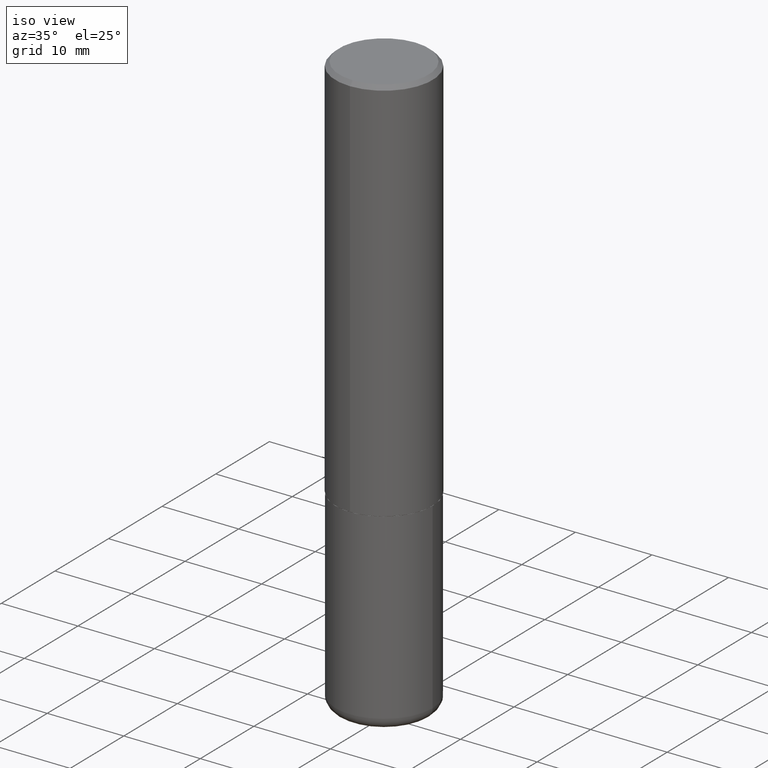
[diagram: clean part render]
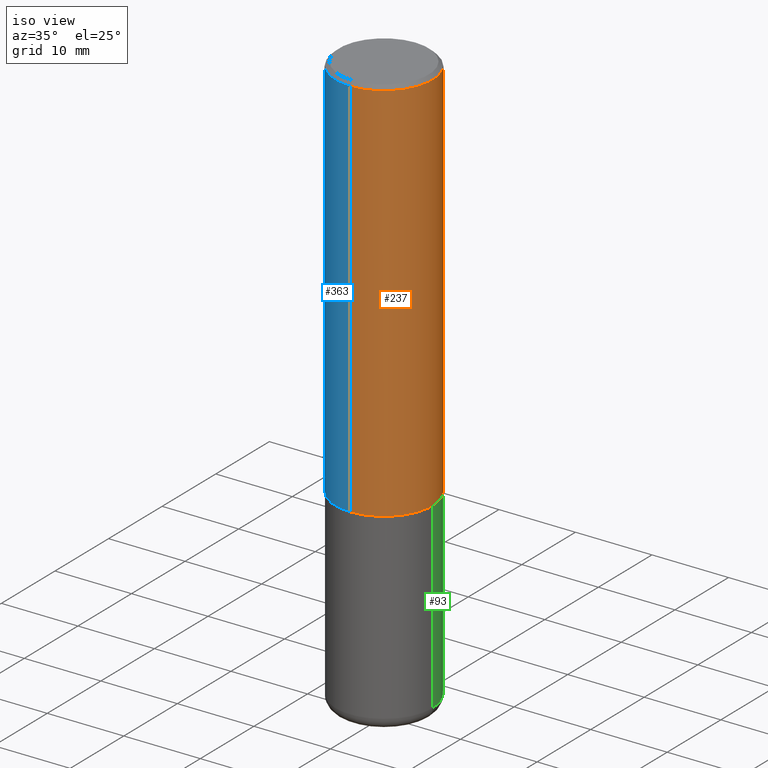
[diagram: same view with three faces highlighted in distinct colors, each labeled with its STEP entity id]
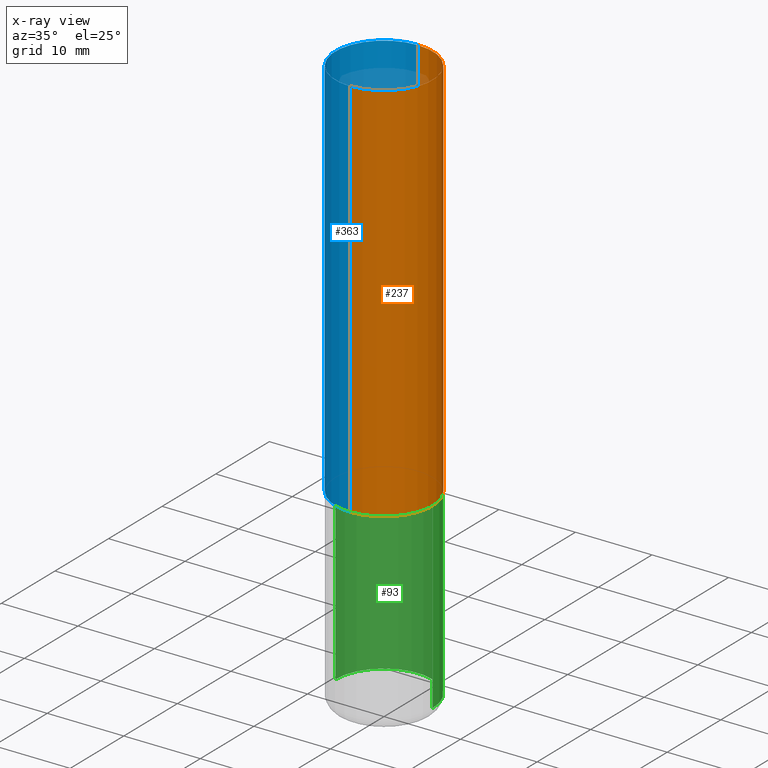
[diagram: x-ray of the same camera — body ghosted, the three highlighted faces saturated]
A machine part, iso view with three faces highlighted in distinct colors.
The next image is the same camera in x-ray (body ghosted, the three faces saturated) — at least one of them is partly hidden behind the body in this view.
Their STEP definitions:

[orange] entity #237 — the highlighted cylindrical surface (partial cylindrical patch) has radius 6.35 mm, axis along (-0, 0, 1).
#3 = CARTESIAN_POINT ( 'NONE',  ( -1.745740669421567467E-15, -0.2500000000000001110, 8.732840426224690034E-16 ) ) ;
#27 = ORIENTED_EDGE ( 'NONE', *, *, #418, .T. ) ;
#33 = DIRECTION ( 'NONE',  ( -6.982962677686266711E-15, -1.000000000000000000, 3.493136170489874436E-15 ) ) ;
#38 = CYLINDRICAL_SURFACE ( 'NONE', #206, 0.2500000000000001110 ) ;
#44 = DIRECTION ( 'NONE',  ( -2.444313243422440590E-29, 3.493136170489874041E-15, 1.000000000000000000 ) ) ;
#53 = VECTOR ( 'NONE', #279, 39.37007874015748143 ) ;
#67 = ORIENTED_EDGE ( 'NONE', *, *, #331, .F. ) ;
#74 = VECTOR ( 'NONE', #139, 39.37007874015748143 ) ;
#92 = CARTESIAN_POINT ( 'NONE',  ( -1.715124499442882299E-15, -0.2500000000000000555, -0.01999999999999918163 ) ) ;
#99 = EDGE_CURVE ( 'NONE', #169, #311, #348, .T. ) ;
#100 = AXIS2_PLACEMENT_3D ( 'NONE', #199, #138, #230 ) ;
#108 = DIRECTION ( 'NONE',  ( -6.982962677686265922E-15, -1.000000000000000000, 3.278217592397112312E-15 ) ) ;
#127 = ORIENTED_EDGE ( 'NONE', *, *, #163, .F. ) ;
#131 = LINE ( 'NONE', #3, #74 ) ;
#138 = DIRECTION ( 'NONE',  ( -2.444313243422440590E-29, 3.493136170489874041E-15, 1.000000000000000000 ) ) ;
#139 = DIRECTION ( 'NONE',  ( -2.444313243422440590E-29, 3.493136170489874041E-15, 1.000000000000000000 ) ) ;
#163 = EDGE_CURVE ( 'NONE', #417, #207, #391, .T. ) ;
#169 = VERTEX_POINT ( 'NONE', #297 ) ;
#188 = LINE ( 'NONE', #289, #53 ) ;
#196 = CARTESIAN_POINT ( 'NONE',  ( 1.776356839400276103E-15, 0.2499999999999933109, -1.999000000000000998 ) ) ;
#199 = CARTESIAN_POINT ( 'NONE',  ( 4.888626486844894878E-31, -6.986272340979767558E-17, -0.02000000000000005593 ) ) ;
#206 = AXIS2_PLACEMENT_3D ( 'NONE', #374, #276, #33 ) ;
#207 = VERTEX_POINT ( 'NONE', #249 ) ;
#230 = DIRECTION ( 'NONE',  ( -6.982962677686265922E-15, -1.000000000000000000, 3.500180241882337261E-15 ) ) ;
#237 = ADVANCED_FACE ( 'NONE', ( #352 ), #38, .T. ) ;
#249 = CARTESIAN_POINT ( 'NONE',  ( 1.745740669421566875E-15, 0.2499999999999999167, -0.02000000000000093023 ) ) ;
#276 = DIRECTION ( 'NONE',  ( -2.444313243422440590E-29, 3.493136170489874041E-15, 1.000000000000000000 ) ) ;
#279 = DIRECTION ( 'NONE',  ( -2.444313243422440590E-29, 3.493136170489874041E-15, 1.000000000000000000 ) ) ;
#289 = CARTESIAN_POINT ( 'NONE',  ( 1.776356839400251254E-15, 0.2500000000000001110, -8.732840426224690034E-16 ) ) ;
#297 = CARTESIAN_POINT ( 'NONE',  ( -1.745740669421519543E-15, -0.2500000000000072164, -1.998999999999999444 ) ) ;
#311 = VERTEX_POINT ( 'NONE', #196 ) ;
#323 = AXIS2_PLACEMENT_3D ( 'NONE', #341, #44, #108 ) ;
#331 = EDGE_CURVE ( 'NONE', #169, #417, #131, .T. ) ;
#341 = CARTESIAN_POINT ( 'NONE',  ( 4.886182173601459090E-29, -6.982779204809258546E-15, -1.999000000000000110 ) ) ;
#348 = CIRCLE ( 'NONE', #323, 0.2500000000000002776 ) ;
#352 = FACE_OUTER_BOUND ( 'NONE', #411, .T. ) ;
#368 = ORIENTED_EDGE ( 'NONE', *, *, #99, .T. ) ;
#374 = CARTESIAN_POINT ( 'NONE',  ( 0.000000000000000000, 0.000000000000000000, 0.000000000000000000 ) ) ;
#391 = CIRCLE ( 'NONE', #100, 0.2500000000000000000 ) ;
#411 = EDGE_LOOP ( 'NONE', ( #368, #27, #127, #67 ) ) ;
#417 = VERTEX_POINT ( 'NONE', #92 ) ;
#418 = EDGE_CURVE ( 'NONE', #311, #207, #188, .T. ) ;

[blue] entity #363 — the highlighted cylindrical surface (partial cylindrical patch) has radius 6.35 mm, axis along (-0, 0, 1).
#1 = CYLINDRICAL_SURFACE ( 'NONE', #135, 0.2500000000000001110 ) ;
#2 = ORIENTED_EDGE ( 'NONE', *, *, #349, .F. ) ;
#3 = CARTESIAN_POINT ( 'NONE',  ( -1.745740669421567467E-15, -0.2500000000000001110, 8.732840426224690034E-16 ) ) ;
#39 = DIRECTION ( 'NONE',  ( -2.444313243422440590E-29, 3.493136170489874041E-15, 1.000000000000000000 ) ) ;
#53 = VECTOR ( 'NONE', #279, 39.37007874015748143 ) ;
#54 = EDGE_LOOP ( 'NONE', ( #211, #187, #161, #2 ) ) ;
#74 = VECTOR ( 'NONE', #139, 39.37007874015748143 ) ;
#82 = AXIS2_PLACEMENT_3D ( 'NONE', #283, #387, #344 ) ;
#92 = CARTESIAN_POINT ( 'NONE',  ( -1.715124499442882299E-15, -0.2500000000000000555, -0.01999999999999918163 ) ) ;
#107 = EDGE_CURVE ( 'NONE', #311, #169, #300, .T. ) ;
#131 = LINE ( 'NONE', #3, #74 ) ;
#135 = AXIS2_PLACEMENT_3D ( 'NONE', #314, #39, #288 ) ;
#139 = DIRECTION ( 'NONE',  ( -2.444313243422440590E-29, 3.493136170489874041E-15, 1.000000000000000000 ) ) ;
#158 = DIRECTION ( 'NONE',  ( -2.444313243422440590E-29, 3.493136170489874041E-15, 1.000000000000000000 ) ) ;
#160 = CARTESIAN_POINT ( 'NONE',  ( 4.888626486844894878E-31, -6.986272340979767558E-17, -0.02000000000000005593 ) ) ;
#161 = ORIENTED_EDGE ( 'NONE', *, *, #331, .T. ) ;
#169 = VERTEX_POINT ( 'NONE', #297 ) ;
#187 = ORIENTED_EDGE ( 'NONE', *, *, #107, .T. ) ;
#188 = LINE ( 'NONE', #289, #53 ) ;
#196 = CARTESIAN_POINT ( 'NONE',  ( 1.776356839400276103E-15, 0.2499999999999933109, -1.999000000000000998 ) ) ;
#207 = VERTEX_POINT ( 'NONE', #249 ) ;
#211 = ORIENTED_EDGE ( 'NONE', *, *, #418, .F. ) ;
#249 = CARTESIAN_POINT ( 'NONE',  ( 1.745740669421566875E-15, 0.2499999999999999167, -0.02000000000000093023 ) ) ;
#277 = FACE_OUTER_BOUND ( 'NONE', #54, .T. ) ;
#279 = DIRECTION ( 'NONE',  ( -2.444313243422440590E-29, 3.493136170489874041E-15, 1.000000000000000000 ) ) ;
#283 = CARTESIAN_POINT ( 'NONE',  ( 4.886182173601459090E-29, -6.982779204809258546E-15, -1.999000000000000110 ) ) ;
#288 = DIRECTION ( 'NONE',  ( -6.982962677686266711E-15, -1.000000000000000000, 3.493136170489874436E-15 ) ) ;
#289 = CARTESIAN_POINT ( 'NONE',  ( 1.776356839400251254E-15, 0.2500000000000001110, -8.732840426224690034E-16 ) ) ;
#297 = CARTESIAN_POINT ( 'NONE',  ( -1.745740669421519543E-15, -0.2500000000000072164, -1.998999999999999444 ) ) ;
#300 = CIRCLE ( 'NONE', #82, 0.2500000000000002776 ) ;
#304 = CIRCLE ( 'NONE', #309, 0.2500000000000000000 ) ;
#308 = DIRECTION ( 'NONE',  ( -6.982962677686265922E-15, -1.000000000000000000, 3.500180241882337261E-15 ) ) ;
#309 = AXIS2_PLACEMENT_3D ( 'NONE', #160, #158, #308 ) ;
#311 = VERTEX_POINT ( 'NONE', #196 ) ;
#314 = CARTESIAN_POINT ( 'NONE',  ( 0.000000000000000000, 0.000000000000000000, 0.000000000000000000 ) ) ;
#331 = EDGE_CURVE ( 'NONE', #169, #417, #131, .T. ) ;
#344 = DIRECTION ( 'NONE',  ( -6.982962677686265922E-15, -1.000000000000000000, 3.278217592397112312E-15 ) ) ;
#349 = EDGE_CURVE ( 'NONE', #207, #417, #304, .T. ) ;
#363 = ADVANCED_FACE ( 'NONE', ( #277 ), #1, .T. ) ;
#387 = DIRECTION ( 'NONE',  ( -2.444313243422440590E-29, 3.493136170489874041E-15, 1.000000000000000000 ) ) ;
#417 = VERTEX_POINT ( 'NONE', #92 ) ;
#418 = EDGE_CURVE ( 'NONE', #311, #207, #188, .T. ) ;

[green] entity #93 — the highlighted cylindrical surface (partial cylindrical patch) has radius 6.35 mm, axis along (-0, 0, 1).
#11 = DIRECTION ( 'NONE',  ( 1.000000000000000000, -6.982962677686266711E-15, 0.000000000000000000 ) ) ;
#17 = LINE ( 'NONE', #112, #90 ) ;
#18 = CARTESIAN_POINT ( 'NONE',  ( -0.2500000000000000000, 1.776356839400250465E-15, -1.229733772563726445E-29 ) ) ;
#21 = DIRECTION ( 'NONE',  ( 1.000000000000000000, -6.982962677686266711E-15, 4.876176775795935793E-29 ) ) ;
#46 = LINE ( 'NONE', #18, #376 ) ;
#72 = DIRECTION ( 'NONE',  ( -2.445468806185136597E-29, 3.491481338843145583E-15, 1.000000000000000000 ) ) ;
#86 = CARTESIAN_POINT ( 'NONE',  ( 0.2499999999999998335, -1.201069580562041471E-14, -2.940000000000000391 ) ) ;
#88 = VERTEX_POINT ( 'NONE', #86 ) ;
#90 = VECTOR ( 'NONE', #274, 39.37007874015748143 ) ;
#93 = ADVANCED_FACE ( 'NONE', ( #240 ), #269, .T. ) ;
#112 = CARTESIAN_POINT ( 'NONE',  ( 0.2500000000000000000, -1.745740669421566678E-15, 1.219044193948983948E-29 ) ) ;
#121 = CARTESIAN_POINT ( 'NONE',  ( 0.2500000000000000000, -8.728703347107858632E-15, -2.000000000000000444 ) ) ;
#129 = AXIS2_PLACEMENT_3D ( 'NONE', #222, #72, #413 ) ;
#133 = EDGE_CURVE ( 'NONE', #88, #198, #17, .T. ) ;
#150 = ORIENTED_EDGE ( 'NONE', *, *, #133, .F. ) ;
#175 = EDGE_CURVE ( 'NONE', #225, #305, #46, .T. ) ;
#181 = CARTESIAN_POINT ( 'NONE',  ( 4.890937612370273754E-29, -6.982962677686291954E-15, -2.000000000000000444 ) ) ;
#198 = VERTEX_POINT ( 'NONE', #121 ) ;
#212 = ORIENTED_EDGE ( 'NONE', *, *, #175, .T. ) ;
#217 = EDGE_CURVE ( 'NONE', #198, #305, #329, .T. ) ;
#219 = AXIS2_PLACEMENT_3D ( 'NONE', #303, #406, #21 ) ;
#220 = CARTESIAN_POINT ( 'NONE',  ( -0.2500000000000000000, -6.847602067542319531E-15, -2.000000000000000444 ) ) ;
#222 = CARTESIAN_POINT ( 'NONE',  ( 7.189678290184301639E-29, -1.026495513619884961E-14, -2.940000000000000391 ) ) ;
#225 = VERTEX_POINT ( 'NONE', #370 ) ;
#229 = ORIENTED_EDGE ( 'NONE', *, *, #401, .T. ) ;
#240 = FACE_OUTER_BOUND ( 'NONE', #313, .T. ) ;
#269 = CYLINDRICAL_SURFACE ( 'NONE', #219, 0.2500000000000000000 ) ;
#274 = DIRECTION ( 'NONE',  ( -2.445468806185136877E-29, 3.491481338843145188E-15, 1.000000000000000000 ) ) ;
#278 = AXIS2_PLACEMENT_3D ( 'NONE', #181, #398, #11 ) ;
#303 = CARTESIAN_POINT ( 'NONE',  ( 0.000000000000000000, 0.000000000000000000, 0.000000000000000000 ) ) ;
#305 = VERTEX_POINT ( 'NONE', #220 ) ;
#313 = EDGE_LOOP ( 'NONE', ( #229, #212, #371, #150 ) ) ;
#329 = CIRCLE ( 'NONE', #278, 0.2500000000000000000 ) ;
#356 = CIRCLE ( 'NONE', #129, 0.2500000000000000000 ) ;
#370 = CARTESIAN_POINT ( 'NONE',  ( -0.2499999999999998335, -8.488598296798600727E-15, -2.940000000000000391 ) ) ;
#371 = ORIENTED_EDGE ( 'NONE', *, *, #217, .F. ) ;
#376 = VECTOR ( 'NONE', #407, 39.37007874015748143 ) ;
#398 = DIRECTION ( 'NONE',  ( -2.445468806185136597E-29, 3.491481338843145583E-15, 1.000000000000000000 ) ) ;
#401 = EDGE_CURVE ( 'NONE', #88, #225, #356, .T. ) ;
#406 = DIRECTION ( 'NONE',  ( -2.445468806185136597E-29, 3.491481338843145583E-15, 1.000000000000000000 ) ) ;
#407 = DIRECTION ( 'NONE',  ( -2.445468806185136877E-29, 3.491481338843145188E-15, 1.000000000000000000 ) ) ;
#413 = DIRECTION ( 'NONE',  ( 1.000000000000000000, -6.982962677686262766E-15, 0.000000000000000000 ) ) ;